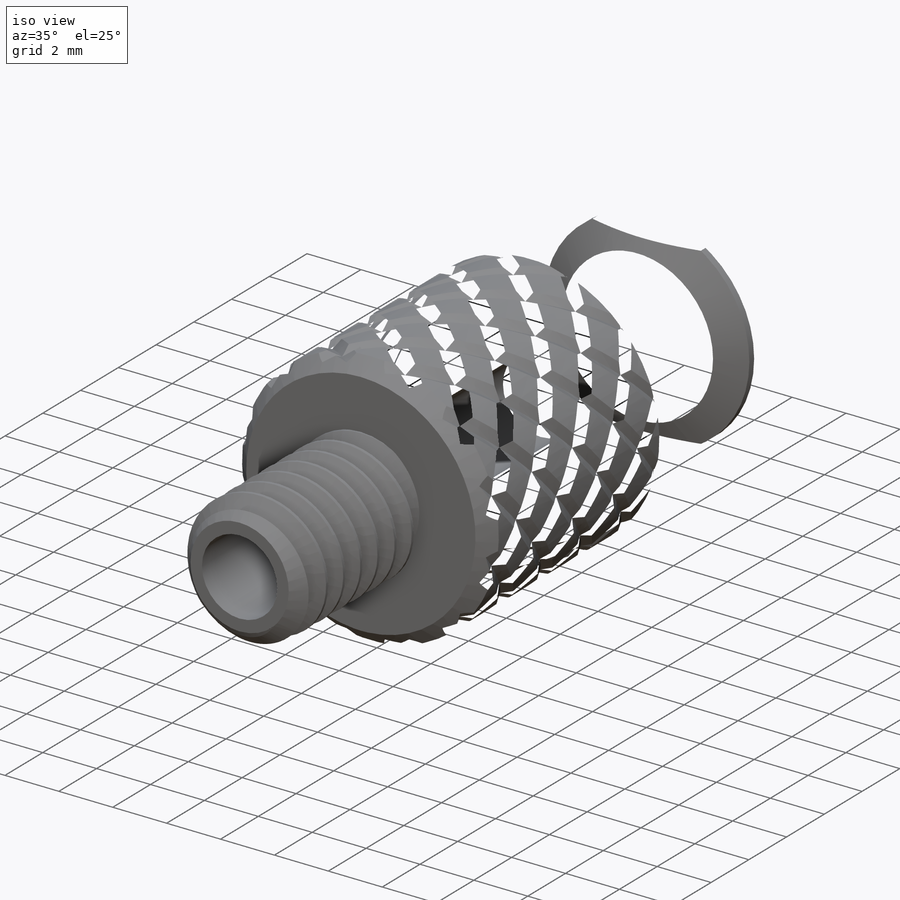
[diagram: iso view]
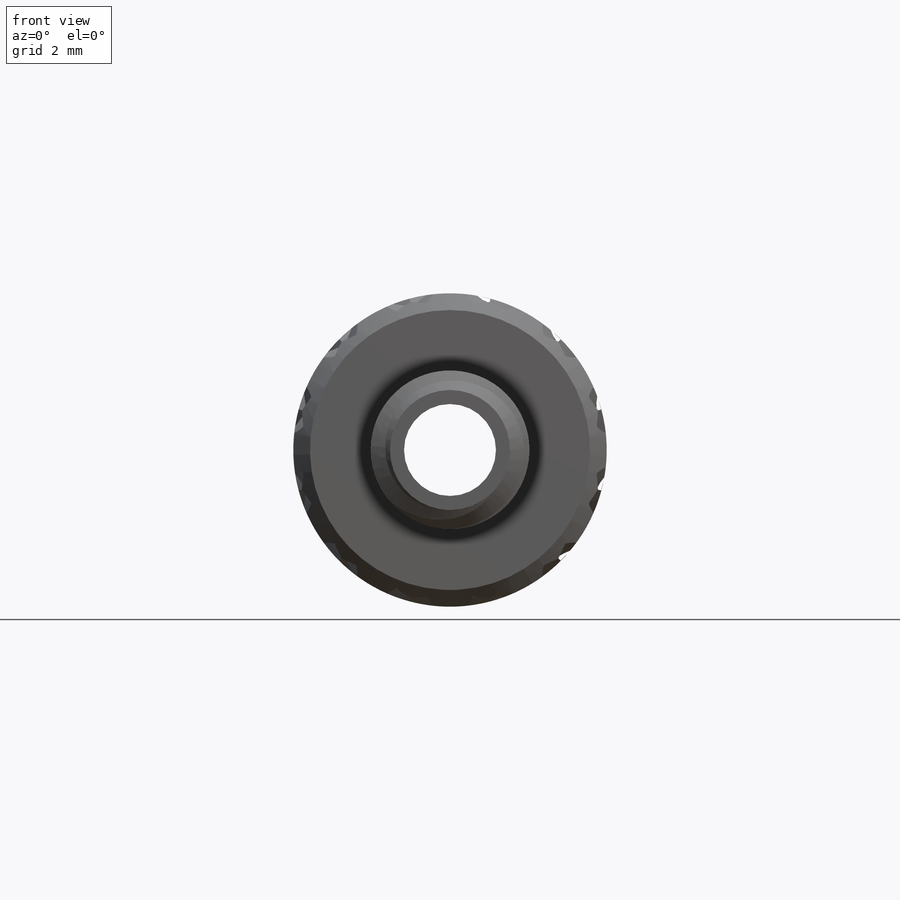
[diagram: front view]
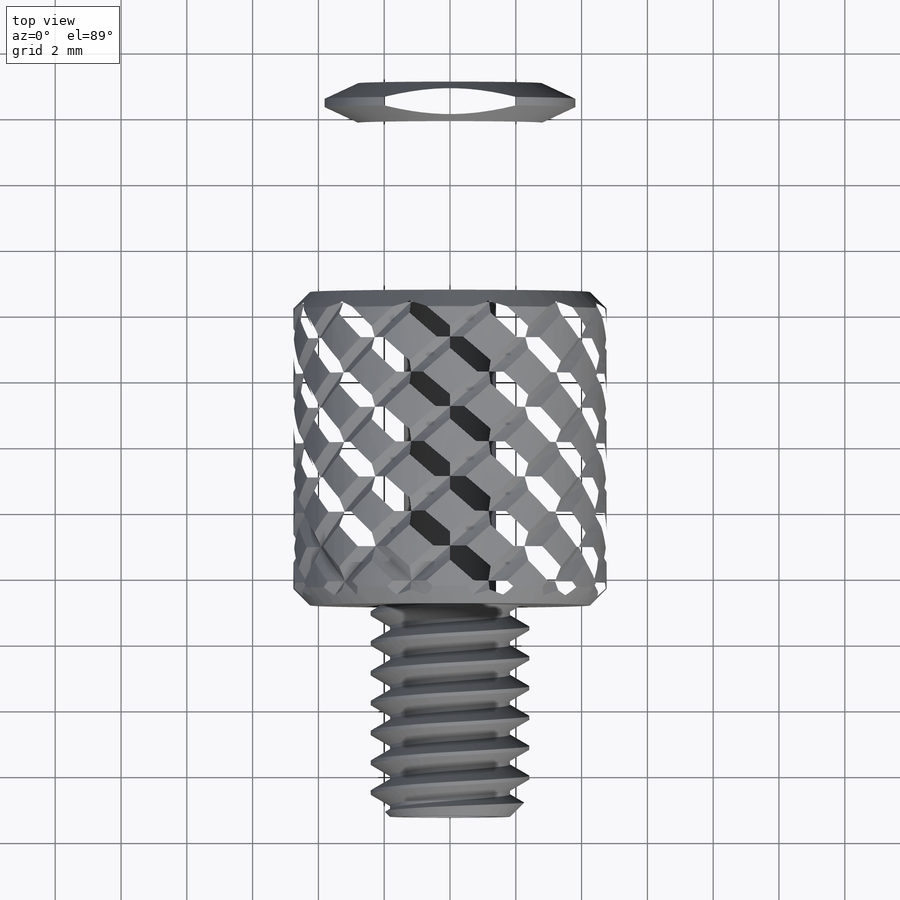
[diagram: top view]
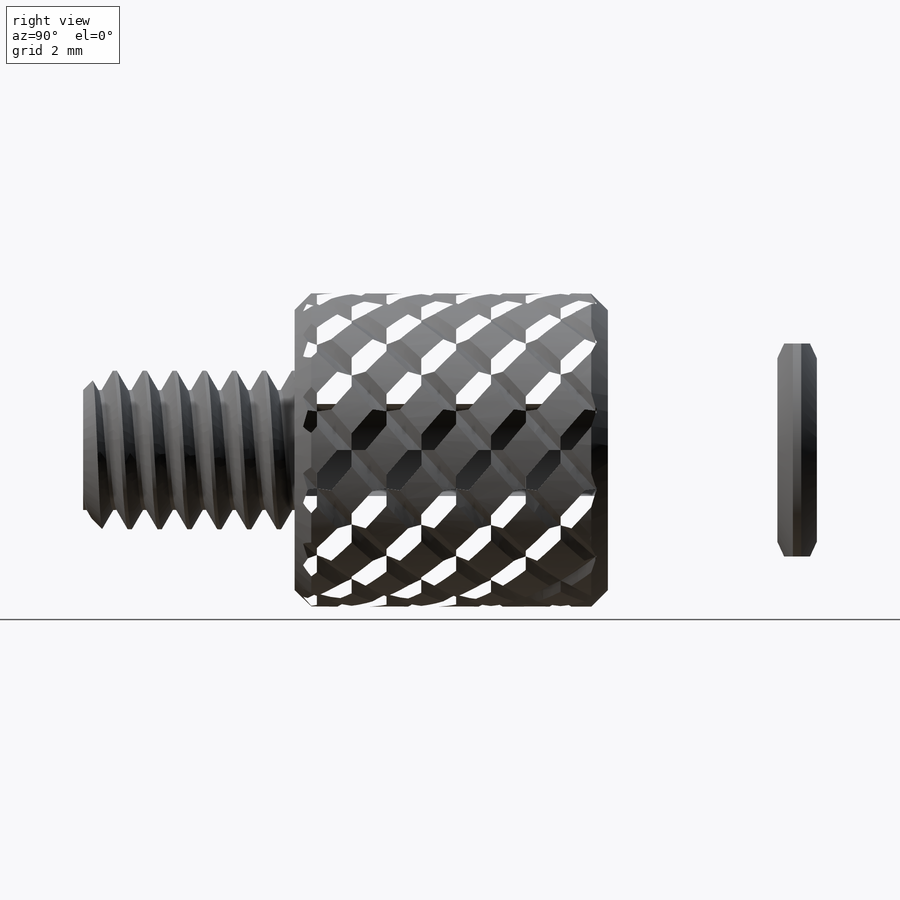
[diagram: right view]
SOLIDWORKS PART (.sldprt)
format: sldprt  version: not decoded by parser v0  size: 1,696,768 bytes
history: native  units: mm
features: sketch x12, plane x6, cut_extrude x3, extrude x2, helix x2, sweep x2, material x1, cut_revolve x1, pattern_circular x1, mirror x1, revolve x1 (+14 scaffold rows collapsed)
feature tree (46):
  scaffold x14  (default folders/planes/origin — collapsed)
  material  "Material <not specified>"
  sketch  "Sketch12"  dims[c1.Thread Boss=6.858mm c1.Nut Body H=~31.920424mm c2.Nut Body H=~78.713668mm c3.Nut Body H=~39.356834mm c3.Shoulder L=1.651mm c3.OAL=22.5552mm c3. Nut Body L=9.525mm c3.D1=5.08mm c3.D2=6.604mm c3.Knurl Start=16.51mm c3.D3=1.27mm]
  plane  "Plane2"
  plane  "Plane3"
  plane  "Plane4"
  plane  "Plane5"
  plane  "Plane6"
  sketch  "Sketch1"  dims[OD=4.826mm]
  extrude  "Extrude1"  [1 undecoded]
  sketch  "Sketch2"
  helix  "Helix/Spiral1"  Pitch=7.765143mm pitch=0.907143mm
  sketch  "Sketch3"  dims[c1.D1=~0.113393mm c1.D2=~0.453571mm c1.D3=~1.069256mm c2.D3=60.0deg]
  sweep  "Cut-Sweep1"
  sketch  "Sketch6"  dims[c1.head dia=9.525mm c1.D2=8.5725mm c1.Body OD=9.525mm c1.D1=28.575mm c2.D1=4.5deg c2.D3=28.575mm c3.D3=27.0deg c3.Wall Ref=~0.47625mm]
  extrude  "Extrude2"  [1 undecoded]
  plane  "Plane1"  Offset=0.9525mm
  sketch  "Sketch16"  dims[D1=2.794mm]
  cut_extrude  "Cut-Extrude2"  [1 undecoded]
  sketch  "Sketch17"
  cut_extrude  "Cut-Extrude3"  [1 undecoded]
  sketch  "Sketch19"  dims[c1.D1=~1.584126mm c2.D1=45.0deg c2.D2=0.508mm]
  cut_revolve  "Cut-Revolve1"  Angle=360deg
  sketch  "Sketch20"
  helix  "Helix/Spiral2"  Pitch=15.24mm
  sketch  "Sketch21"  dims[D1=135.0deg]
  sweep  "Cut-Sweep2"
  pattern_circular  "CirPattern2"  Count=12 Angle=360deg
  mirror  "Mirror1"
  sketch  "Sketch22"  dims[c1.D1=~1.256484mm c2.D1=25.0deg c2.D2=~0.385152mm c3.D2=25.0deg c3.D3=0.254mm c3.D4=0.254mm c3.D5=1.778mm c3.D6=1.016mm c3.D7=6.604mm c3.D8=5.588mm c3.D9=0.508mm]
  revolve  "Revolve1"  Angle=360deg
  sketch  "Sketch23"  dims[D2=6.477mm D1=2.54mm]
  cut_extrude  "Cut-Extrude4"  Depth=2.54mm
decode coverage: 15 of 25 modeling features carry decoded parameters
note: ~ marks probable driven/reference dimensions
note: 4 parameter values undecoded
summary: no parameter record found for 4 features
note: suppression state not decoded; provenance and decode notes live in map.json
